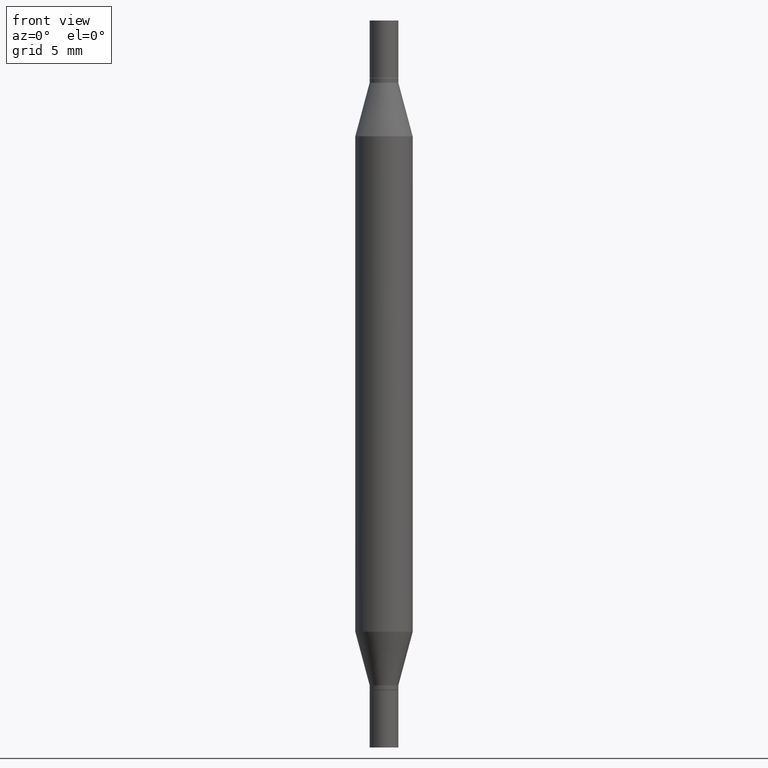
[diagram: clean part render]
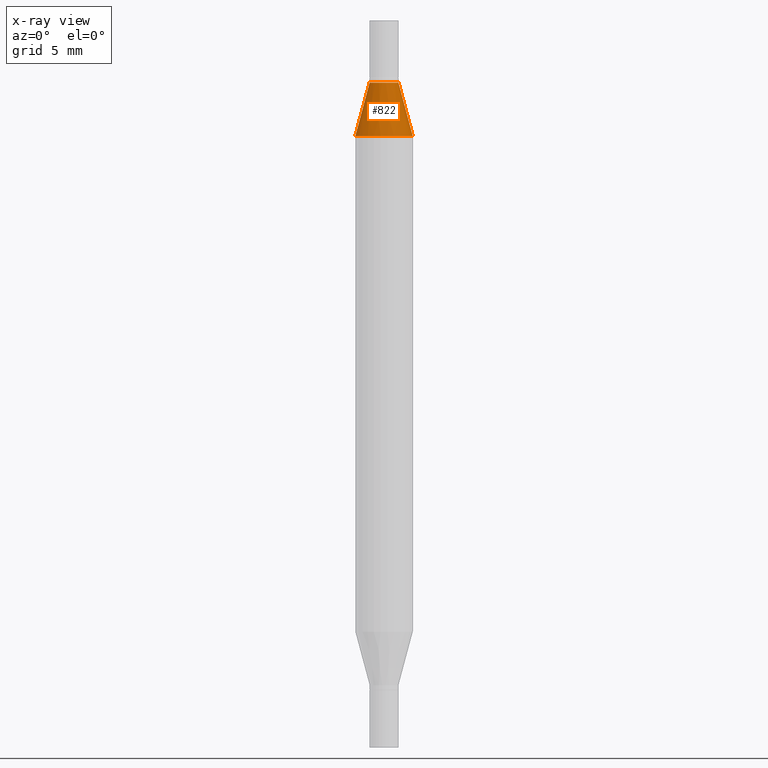
[diagram: x-ray — body ghosted, one internal face saturated and labeled with its STEP entity id]
A machine part, front view, then the same camera in x-ray: the body is ghosted and one INTERNAL B-rep face — a face not visible from any outside direction — is saturated and labeled: STEP entity #822.
In plain terms, the highlighted conical surface has half-angle 15 deg.
Its self-contained STEP definition (entity closure, byte-faithful):
#98 = VECTOR ( 'NONE', #898, 39.37007874015747433 ) ;
#101 = EDGE_LOOP ( 'NONE', ( #768, #929, #469, #830 ) ) ;
#105 = VERTEX_POINT ( 'NONE', #879 ) ;
#120 = DIRECTION ( 'NONE',  ( 1.000000000000000000, -6.982962677686265133E-15, 0.000000000000000000 ) ) ;
#142 = EDGE_CURVE ( 'NONE', #237, #631, #188, .T. ) ;
#188 = CIRCLE ( 'NONE', #244, 0.05904999999999999832 ) ;
#237 = VERTEX_POINT ( 'NONE', #812 ) ;
#244 = AXIS2_PLACEMENT_3D ( 'NONE', #939, #860, #120 ) ;
#332 = FACE_OUTER_BOUND ( 'NONE', #101, .T. ) ;
#392 = DIRECTION ( 'NONE',  ( 2.445468806185136597E-29, 3.491805094961124077E-15, 1.000000000000000000 ) ) ;
#449 = CARTESIAN_POINT ( 'NONE',  ( 0.02954999999999991661, -6.530554135165988789E-16, -0.1280000000000001137 ) ) ;
#455 = CIRCLE ( 'NONE', #491, 0.02954999999999991661 ) ;
#462 = VERTEX_POINT ( 'NONE', #449 ) ;
#469 = ORIENTED_EDGE ( 'NONE', *, *, #142, .T. ) ;
#479 = CARTESIAN_POINT ( 'NONE',  ( 3.345645873741884627E-29, -4.467088663909703532E-16, -0.1280000000000001137 ) ) ;
#491 = AXIS2_PLACEMENT_3D ( 'NONE', #832, #392, #705 ) ;
#507 = AXIS2_PLACEMENT_3D ( 'NONE', #479, #787, #554 ) ;
#522 = VECTOR ( 'NONE', #545, 39.37007874015747433 ) ;
#530 = CARTESIAN_POINT ( 'NONE',  ( -0.02954999999999991661, -2.439811505568221169E-16, -0.1280000000000001137 ) ) ;
#545 = DIRECTION ( 'NONE',  ( -0.2588190451025213501, -1.597197180879714326E-15, -0.9659258262890682012 ) ) ;
#554 = DIRECTION ( 'NONE',  ( 1.000000000000000000, -6.982962677686265133E-15, 0.000000000000000000 ) ) ;
#599 = LINE ( 'NONE', #878, #98 ) ;
#605 = LINE ( 'NONE', #530, #522 ) ;
#631 = VERTEX_POINT ( 'NONE', #671 ) ;
#670 = EDGE_CURVE ( 'NONE', #462, #631, #599, .T. ) ;
#671 = CARTESIAN_POINT ( 'NONE',  ( 0.05904999999999999832, -1.243484836231766624E-15, -0.2380954988232820146 ) ) ;
#705 = DIRECTION ( 'NONE',  ( 1.000000000000000000, -6.982962677686265133E-15, 0.000000000000000000 ) ) ;
#755 = EDGE_CURVE ( 'NONE', #105, #237, #605, .T. ) ;
#760 = EDGE_CURVE ( 'NONE', #105, #462, #455, .T. ) ;
#768 = ORIENTED_EDGE ( 'NONE', *, *, #760, .F. ) ;
#787 = DIRECTION ( 'NONE',  ( -2.445468806185136597E-29, -3.491805094961124077E-15, -1.000000000000000000 ) ) ;
#812 = CARTESIAN_POINT ( 'NONE',  ( -0.05904999999999999832, -4.260284833459836245E-16, -0.2380954988232820146 ) ) ;
#822 = ADVANCED_FACE ( 'NONE', ( #332 ), #919, .T. ) ;
#830 = ORIENTED_EDGE ( 'NONE', *, *, #670, .F. ) ;
#832 = CARTESIAN_POINT ( 'NONE',  ( 3.345645873741884627E-29, -4.467088663909703532E-16, -0.1280000000000001137 ) ) ;
#860 = DIRECTION ( 'NONE',  ( 2.445468806185136597E-29, 3.491805094961124077E-15, 1.000000000000000000 ) ) ;
#878 = CARTESIAN_POINT ( 'NONE',  ( 0.02954999999999991661, -6.530554135165988789E-16, -0.1280000000000001137 ) ) ;
#879 = CARTESIAN_POINT ( 'NONE',  ( -0.02954999999999991661, -2.275696666105042854E-16, -0.1280000000000001137 ) ) ;
#898 = DIRECTION ( 'NONE',  ( 0.2588190451025213501, -5.180148453816008779E-15, -0.9659258262890682012 ) ) ;
#919 = CONICAL_SURFACE ( 'NONE', #507, 0.02954999999999991661, 0.2617993877991500740 ) ;
#929 = ORIENTED_EDGE ( 'NONE', *, *, #755, .T. ) ;
#939 = CARTESIAN_POINT ( 'NONE',  ( 3.076410765668156654E-29, -8.311408901143919011E-16, -0.2380954988232820146 ) ) ;